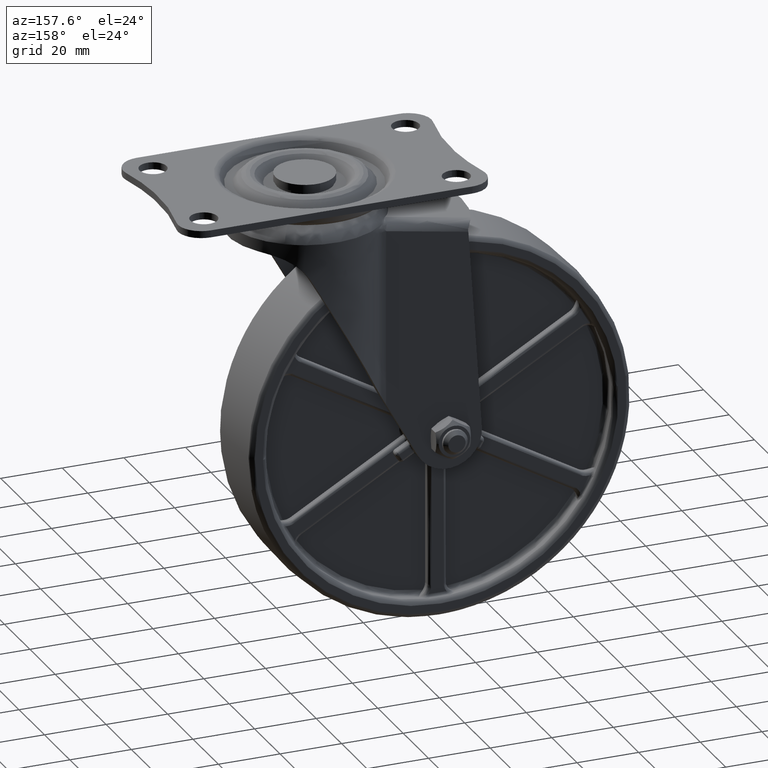
[diagram: clean part render]
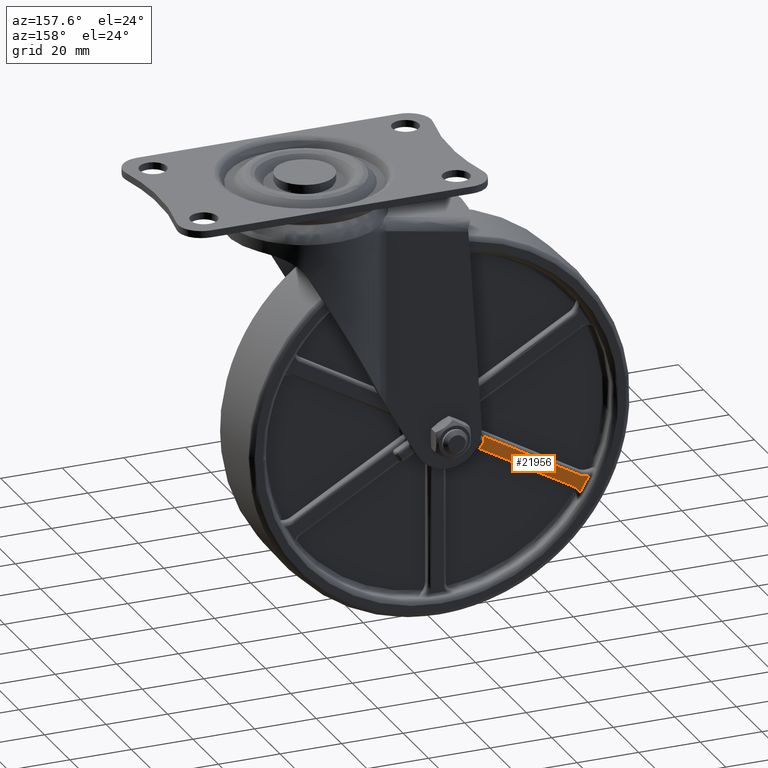
[diagram: same view with one face highlighted and labeled with its STEP entity id]
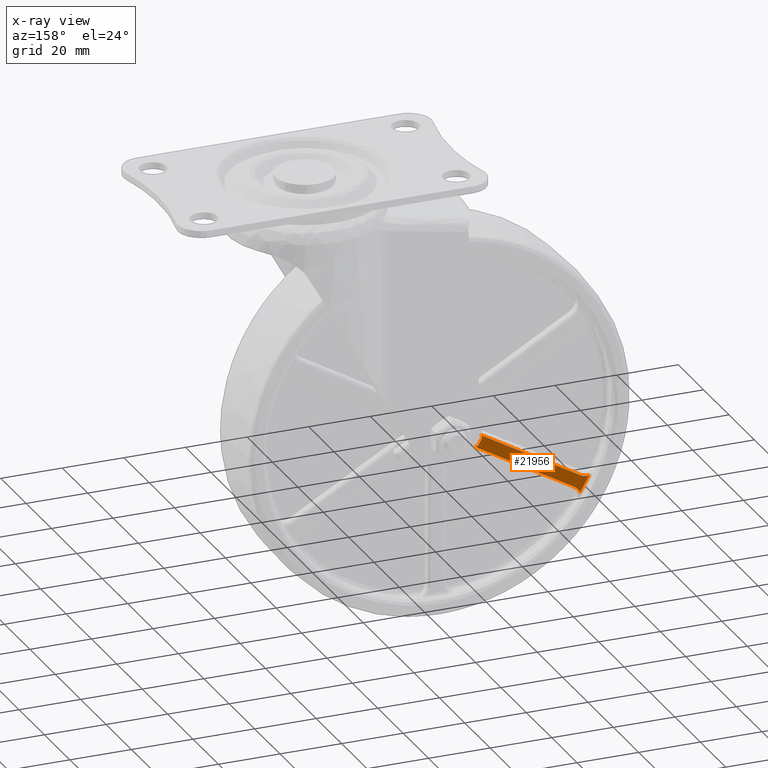
[diagram: x-ray of the same camera — body ghosted, the highlighted face saturated]
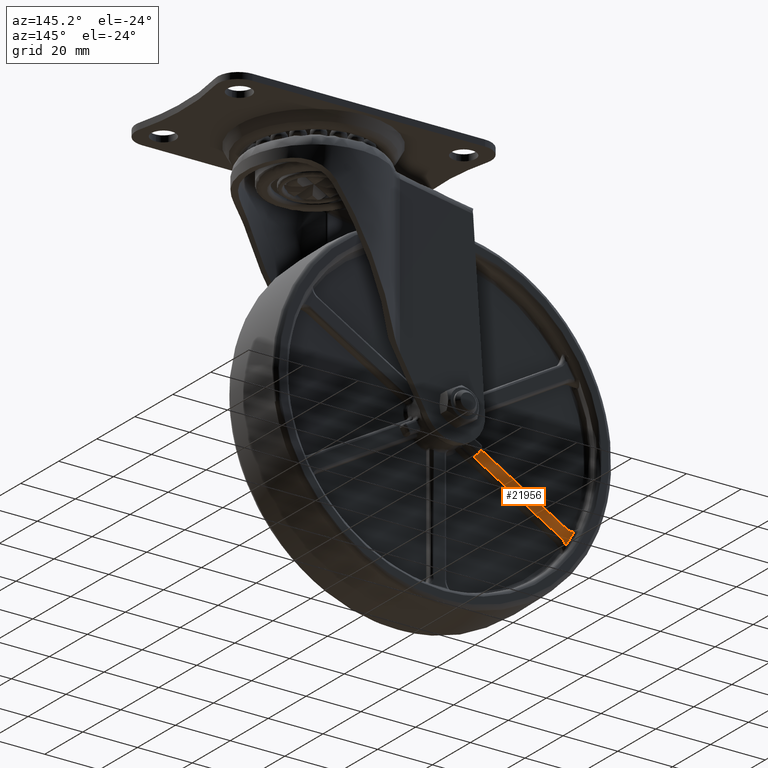
[diagram: same view with one face highlighted and labeled with its STEP entity id]
A machine part, auxiliary view. The second image highlights one B-rep face of the part: STEP entity #21956.
The next image is the same camera in x-ray: the body ghosted, the highlighted face saturated — about 0% of this face is hidden behind the body in this view.
A second angle (auxiliary view) of the same face is appended — the face is thin or edge-on in the first view.
In plain terms, the highlighted face is a freeform B-spline surface patch.
Its self-contained STEP definition (entity closure, byte-faithful):
#7976=CARTESIAN_POINT('',(-11.961478323755120,10.0,-9.215370786294660));
#7977=VERTEX_POINT('',#7976);
#7983=CARTESIAN_POINT('',(-13.292243226552239,10.0,-8.905968223959480));
#7984=VERTEX_POINT('',#7983);
#7985=CARTESIAN_POINT('',(-13.292243226552239,10.0,-8.905968223959478));
#7986=CARTESIAN_POINT('',(-12.771570464387484,10.0,-9.683077329010581));
#7987=CARTESIAN_POINT('',(-11.961478323755120,10.0,-9.215370786294665));
#7995=(BOUNDED_CURVE()B_SPLINE_CURVE(2,(#7985,#7986,#7987),.UNSPECIFIED.,.F.,.U.)CURVE()GEOMETRIC_REPRESENTATION_ITEM()QUASI_UNIFORM_CURVE()RATIONAL_B_SPLINE_CURVE((1.0,0.730296999155788,1.0))REPRESENTATION_ITEM(''));
#7996=EDGE_CURVE('',#7984,#7977,#7995,.T.);
#8196=CARTESIAN_POINT('',(-13.961481627249800,10.0,-5.751264099020160));
#8197=VERTEX_POINT('',#8196);
#8198=CARTESIAN_POINT('',(-14.358911335994019,10.0,-7.058446376155479));
#8199=VERTEX_POINT('',#8198);
#8200=CARTESIAN_POINT('',(-13.961481627249800,10.0,-5.751264099020160));
#8201=CARTESIAN_POINT('',(-14.771573370511476,10.0,-6.218973379723692));
#8202=CARTESIAN_POINT('',(-14.358911335994019,10.0,-7.058446376155479));
#8210=(BOUNDED_CURVE()B_SPLINE_CURVE(2,(#8200,#8201,#8202),.UNSPECIFIED.,.F.,.U.)CURVE()GEOMETRIC_REPRESENTATION_ITEM()QUASI_UNIFORM_CURVE()RATIONAL_B_SPLINE_CURVE((1.0,0.730296625762132,1.0))REPRESENTATION_ITEM(''));
#8211=EDGE_CURVE('',#8197,#8199,#8210,.T.);
#11064=CARTESIAN_POINT('',(-46.314957166201502,10.0,-30.110967617288100));
#11065=VERTEX_POINT('',#11064);
#11193=CARTESIAN_POINT('',(-49.234341472202900,10.0,-25.054445672474451));
#11194=VERTEX_POINT('',#11193);
#11208=CARTESIAN_POINT('',(-46.314957166201467,10.0,-30.110967617288100));
#11209=CARTESIAN_POINT('',(-47.908446293867257,10.0,-27.659954364220958));
#11210=CARTESIAN_POINT('',(-49.234341472202857,10.0,-25.054445672474461));
#11218=(BOUNDED_CURVE()B_SPLINE_CURVE(2,(#11208,#11209,#11210),.UNSPECIFIED.,.F.,.U.)CURVE()GEOMETRIC_REPRESENTATION_ITEM()QUASI_UNIFORM_CURVE()RATIONAL_B_SPLINE_CURVE((1.0,0.998602641793546,1.0))REPRESENTATION_ITEM(''));
#11219=EDGE_CURVE('',#11065,#11194,#11218,.T.);
#17334=CARTESIAN_POINT('',(-46.272364030027603,10.0,-24.405960752018249));
#17335=VERTEX_POINT('',#17334);
#17336=CARTESIAN_POINT('',(-49.234341472202900,10.0,-25.054445672474451));
#17337=CARTESIAN_POINT('',(-47.650181004942837,10.0,-25.201443753379589));
#17338=CARTESIAN_POINT('',(-46.272364030027603,10.0,-24.405960752018249));
#17346=(BOUNDED_CURVE()B_SPLINE_CURVE(2,(#17336,#17337,#17338),.UNSPECIFIED.,.F.,.U.)CURVE()GEOMETRIC_REPRESENTATION_ITEM()QUASI_UNIFORM_CURVE()RATIONAL_B_SPLINE_CURVE((1.0,0.952922646073571,1.0))REPRESENTATION_ITEM(''));
#17347=EDGE_CURVE('',#11194,#17335,#17346,.T.);
#17406=CARTESIAN_POINT('',(-46.272364030027603,10.0,-24.405960752018249));
#17407=CARTESIAN_POINT('',(-13.961481627249800,10.0,-5.751264099020160));
#17408=QUASI_UNIFORM_CURVE('',1,(#17406,#17407),.UNSPECIFIED.,.F.,.U.);
#17409=EDGE_CURVE('',#17335,#8197,#17408,.T.);
#17448=CARTESIAN_POINT('',(-44.272364030027653,10.0,-27.870062367155999));
#17449=VERTEX_POINT('',#17448);
#17450=CARTESIAN_POINT('',(-44.272364030027639,10.0,-27.870062367156009));
#17451=CARTESIAN_POINT('',(-45.650181004942851,10.0,-28.665545368517336));
#17452=CARTESIAN_POINT('',(-46.314957166201481,10.0,-30.110967617288111));
#17460=(BOUNDED_CURVE()B_SPLINE_CURVE(2,(#17450,#17451,#17452),.UNSPECIFIED.,.F.,.U.)CURVE()GEOMETRIC_REPRESENTATION_ITEM()QUASI_UNIFORM_CURVE()RATIONAL_B_SPLINE_CURVE((1.0,0.952922646073572,1.0))REPRESENTATION_ITEM(''));
#17461=EDGE_CURVE('',#17449,#11065,#17460,.T.);
#17505=CARTESIAN_POINT('',(-11.961478323755120,10.0,-9.215370786294660));
#17506=CARTESIAN_POINT('',(-44.272364030027653,10.0,-27.870062367155999));
#17507=QUASI_UNIFORM_CURVE('',1,(#17505,#17506),.UNSPECIFIED.,.F.,.U.);
#17508=EDGE_CURVE('',#7977,#17449,#17507,.T.);
#17529=CARTESIAN_POINT('',(-14.358911335994019,10.0,-7.058446376155475));
#17530=CARTESIAN_POINT('',(-13.887298700000738,10.0,-8.017842206948824));
#17531=CARTESIAN_POINT('',(-13.292243226552239,10.0,-8.905968223959482));
#17539=(BOUNDED_CURVE()B_SPLINE_CURVE(2,(#17529,#17530,#17531),.UNSPECIFIED.,.F.,.U.)CURVE()GEOMETRIC_REPRESENTATION_ITEM()QUASI_UNIFORM_CURVE()RATIONAL_B_SPLINE_CURVE((1.0,0.997775299849829,1.0))REPRESENTATION_ITEM(''));
#17540=EDGE_CURVE('',#8199,#7984,#17539,.T.);
#21941=CARTESIAN_POINT('',(-51.096120214443879,10.0,-4.534496955496508));
#21942=CARTESIAN_POINT('',(-10.099697915287310,10.0,-4.534496955496508));
#21943=CARTESIAN_POINT('',(-51.096120214443879,10.0,-31.327735414189920));
#21944=CARTESIAN_POINT('',(-10.099697915287310,10.0,-31.327735414189920));
#21945=B_SPLINE_SURFACE_WITH_KNOTS('',1,1,((#21941,#21943),(#21942,#21944)),.UNSPECIFIED.,.F.,.F.,.U.,(2,2),(2,2),(0.0,40.996422299156571),(0.0,26.793238458693409),.UNSPECIFIED.);
#21946=ORIENTED_EDGE('',*,*,#17461,.T.);
#21947=ORIENTED_EDGE('',*,*,#11219,.T.);
#21948=ORIENTED_EDGE('',*,*,#17347,.T.);
#21949=ORIENTED_EDGE('',*,*,#17409,.T.);
#21950=ORIENTED_EDGE('',*,*,#8211,.T.);
#21951=ORIENTED_EDGE('',*,*,#17540,.T.);
#21952=ORIENTED_EDGE('',*,*,#7996,.T.);
#21953=ORIENTED_EDGE('',*,*,#17508,.T.);
#21954=EDGE_LOOP('',(#21946,#21947,#21948,#21949,#21950,#21951,#21952,#21953));
#21955=FACE_OUTER_BOUND('',#21954,.T.);
#21956=ADVANCED_FACE('',(#21955),#21945,.T.);